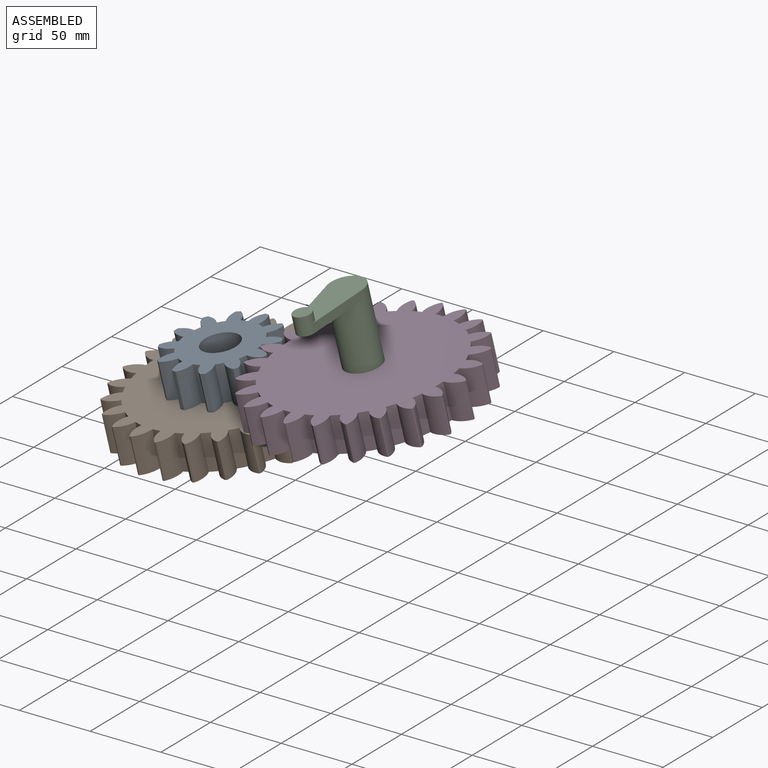
[diagram: assembled view]
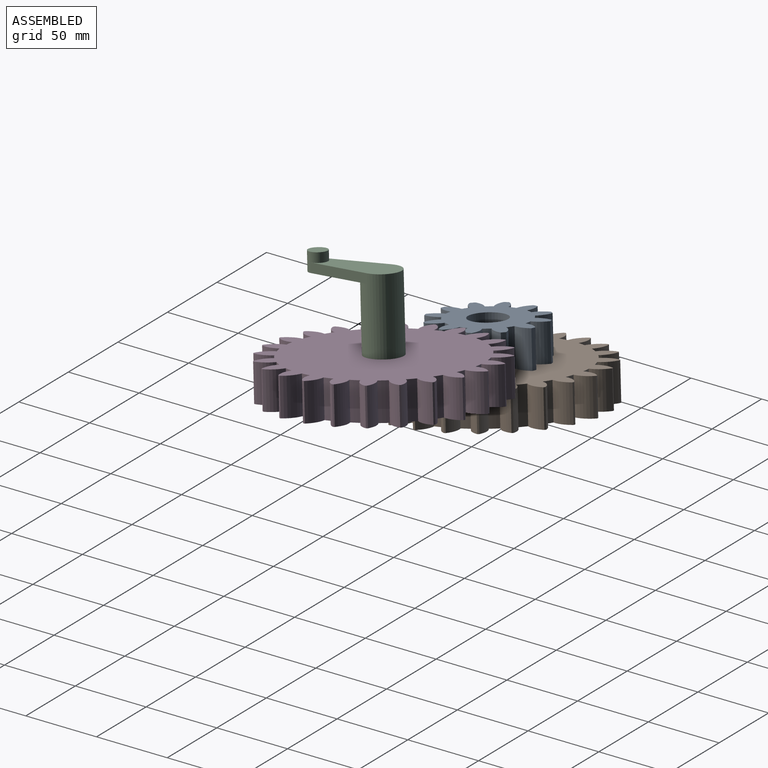
[diagram: assembled view, second angle]
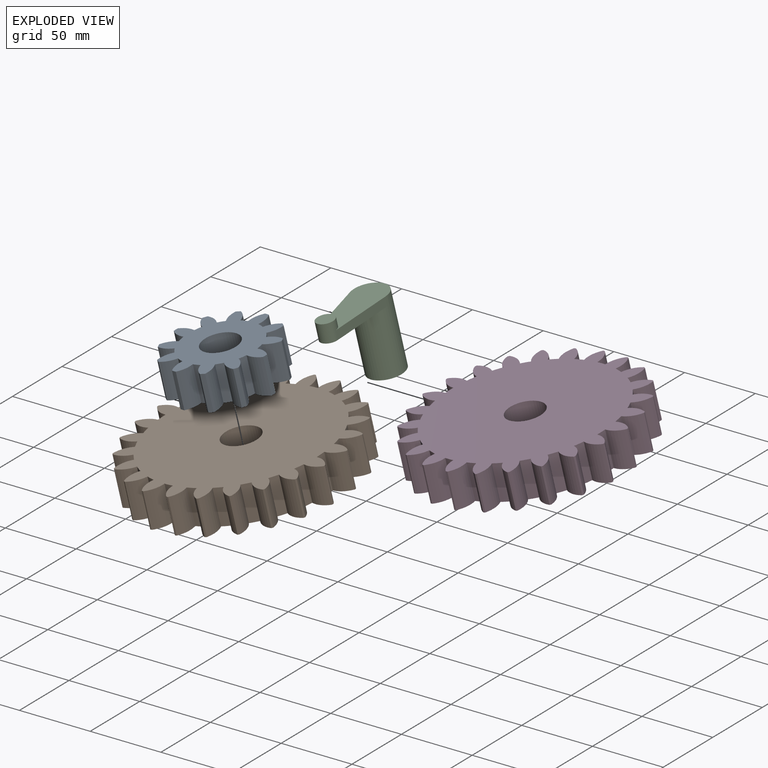
[diagram: exploded view]
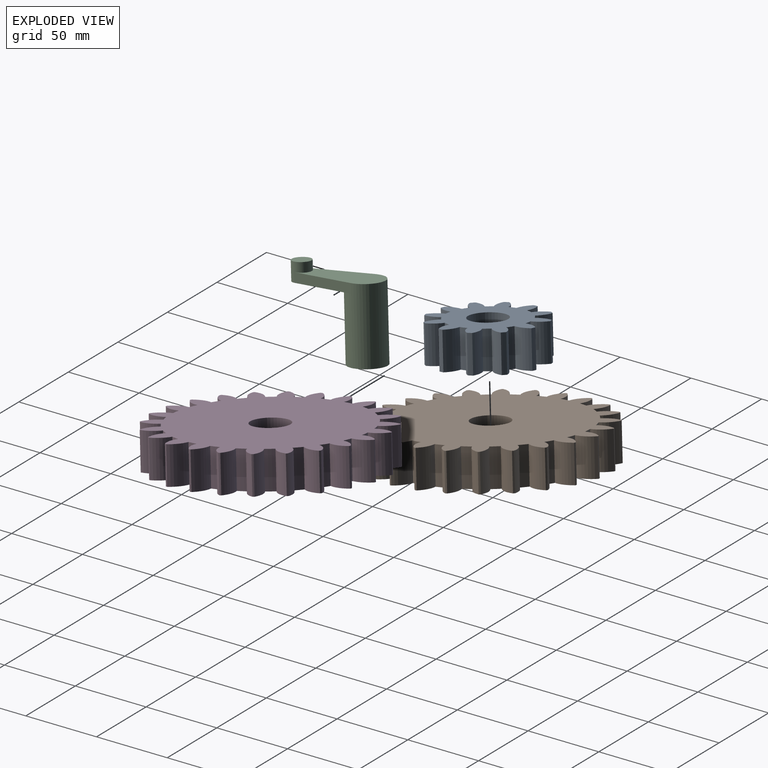
[diagram: exploded view, second angle]
ASSEMBLY  parts=4 mates=2
PART A: 51 faces, bbox 75.9x25.4x75.9 mm
  f0: cylinder r=27.21mm len=25.4mm, axis (0,1,0), area 136.6mm2, adj f14,f15,f16,f34
  f1: cylinder r=27.21mm len=25.4mm, axis (0,1,0), area 136.6mm2, adj f15,f16,f31,f33
  f2: cylinder r=27.21mm len=25.4mm, axis (0,1,0), area 136.6mm2, adj f15,f16,f28,f30
  f3: cylinder r=27.21mm len=25.4mm, axis (0,1,0), area 136.6mm2, adj f15,f16,f25,f27
  f4: cylinder r=27.21mm len=25.4mm, axis (0,1,0), area 136.6mm2, adj f15,f16,f22,f24
  f5: cylinder r=27.21mm len=25.4mm, axis (0,1,0), area 136.6mm2, adj f15,f16,f19,f21
  f6: cylinder r=27.21mm len=25.4mm, axis (0,1,0), area 136.6mm2, adj f15,f16,f18,f47
  f7: cylinder r=27.21mm len=25.4mm, axis (0,1,0), area 136.6mm2, adj f15,f16,f46,f49
  f8: cylinder r=27.21mm len=25.4mm, axis (0,1,0), area 136.6mm2, adj f15,f16,f43,f45
  f9: cylinder r=27.21mm len=25.4mm, axis (0,1,0), area 136.6mm2, adj f15,f16,f40,f42
  f10: cylinder r=27.21mm len=25.4mm, axis (0,1,0), area 136.6mm2, adj f15,f16,f36,f39
  f11: cylinder r=27.21mm len=25.4mm, axis (0,1,0), area 136.6mm2, adj f12,f15,f16,f37
  f12: cylinder r=14.61mm len=25.4mm, axis (0,1,0), area 301.7mm2, adj f11,f13,f15,f16
  f13: cylinder r=38.1mm len=25.4mm, axis (0,1,0), area 82.5mm2, adj f12,f14,f15,f16
  f14: cylinder r=14.61mm len=25.4mm, axis (0,1,0), area 301.7mm2, adj f0,f13,f15,f16
  f15: plane 75.9x75.9mm, normal (0,-1,0), area 2830mm2, adj f0,f1,f2,f3,f4,f5,f6,f7
  f16: plane 75.9x75.9mm, normal (0,1,0), area 2830mm2, adj f0,f1,f2,f3,f4,f5,f6,f7
  f17: cylinder r=38.1mm len=25.4mm, axis (0,1,0), area 82.5mm2, adj f15,f16,f18,f19
  f18: cylinder r=14.61mm len=25.4mm, axis (0,1,0), area 301.7mm2, adj f6,f15,f16,f17
  f19: cylinder r=14.61mm len=25.4mm, axis (0,1,0), area 301.7mm2, adj f5,f15,f16,f17
  f20: cylinder r=38.1mm len=25.4mm, axis (0,1,0), area 82.5mm2, adj f15,f16,f21,f22
  f21: cylinder r=14.61mm len=25.4mm, axis (0,1,0), area 301.7mm2, adj f5,f15,f16,f20
  f22: cylinder r=14.61mm len=25.4mm, axis (0,1,0), area 301.7mm2, adj f4,f15,f16,f20
  f23: cylinder r=38.1mm len=25.4mm, axis (0,1,0), area 82.5mm2, adj f15,f16,f24,f25
  f24: cylinder r=14.61mm len=25.4mm, axis (0,1,0), area 301.7mm2, adj f4,f15,f16,f23
  f25: cylinder r=14.61mm len=25.4mm, axis (0,1,0), area 301.7mm2, adj f3,f15,f16,f23
  f26: cylinder r=38.1mm len=25.4mm, axis (0,1,0), area 82.5mm2, adj f15,f16,f27,f28
  f27: cylinder r=14.61mm len=25.4mm, axis (0,1,0), area 301.7mm2, adj f3,f15,f16,f26
  f28: cylinder r=14.61mm len=25.4mm, axis (0,1,0), area 301.7mm2, adj f2,f15,f16,f26
  f29: cylinder r=38.1mm len=25.4mm, axis (0,1,0), area 82.5mm2, adj f15,f16,f30,f31
  f30: cylinder r=14.61mm len=25.4mm, axis (0,1,0), area 301.7mm2, adj f2,f15,f16,f29
  f31: cylinder r=14.61mm len=25.4mm, axis (0,1,0), area 301.7mm2, adj f1,f15,f16,f29
  f32: cylinder r=38.1mm len=25.4mm, axis (0,1,0), area 82.5mm2, adj f15,f16,f33,f34
  f33: cylinder r=14.61mm len=25.4mm, axis (0,1,0), area 301.7mm2, adj f1,f15,f16,f32
  f34: cylinder r=14.61mm len=25.4mm, axis (0,1,0), area 301.7mm2, adj f0,f15,f16,f32
  f35: cylinder r=38.1mm len=25.4mm, axis (0,1,0), area 82.5mm2, adj f15,f16,f36,f37
  f36: cylinder r=14.61mm len=25.4mm, axis (0,1,0), area 301.7mm2, adj f10,f15,f16,f35
  f37: cylinder r=14.61mm len=25.4mm, axis (0,1,0), area 301.7mm2, adj f11,f15,f16,f35
  f38: cylinder r=38.1mm len=25.4mm, axis (0,1,0), area 82.5mm2, adj f15,f16,f39,f40
  f39: cylinder r=14.61mm len=25.4mm, axis (0,1,0), area 301.7mm2, adj f10,f15,f16,f38
  f40: cylinder r=14.61mm len=25.4mm, axis (0,1,0), area 301.7mm2, adj f9,f15,f16,f38
  f41: cylinder r=38.1mm len=25.4mm, axis (0,1,0), area 82.5mm2, adj f15,f16,f42,f43
  f42: cylinder r=14.61mm len=25.4mm, axis (0,1,0), area 301.7mm2, adj f9,f15,f16,f41
  f43: cylinder r=14.61mm len=25.4mm, axis (0,1,0), area 301.7mm2, adj f8,f15,f16,f41
  f44: cylinder r=38.1mm len=25.4mm, axis (0,1,0), area 82.5mm2, adj f15,f16,f45,f46
  f45: cylinder r=14.61mm len=25.4mm, axis (0,1,0), area 301.7mm2, adj f8,f15,f16,f44
  f46: cylinder r=14.61mm len=25.4mm, axis (0,1,0), area 301.7mm2, adj f7,f15,f16,f44
  f47: cylinder r=14.61mm len=25.4mm, axis (0,1,0), area 301.7mm2, adj f6,f15,f16,f48
  f48: cylinder r=38.1mm len=25.4mm, axis (0,1,0), area 82.5mm2, adj f15,f16,f47,f49
  f49: cylinder r=14.61mm len=25.4mm, axis (0,1,0), area 301.7mm2, adj f7,f15,f16,f48
  f50: cylinder r=12.7mm len=25.4mm, axis (0,-1,0), area 2026.8mm2, adj f15,f16
PART B: 99 faces, bbox 152.1x25.4x152.1 mm
  f0: cylinder r=63.5mm len=25.4mm, axis (0,1,0), area 169.6mm2, adj f26,f27,f28,f64
  f1: cylinder r=63.5mm len=25.4mm, axis (0,1,0), area 169.6mm2, adj f27,f28,f61,f63
  f2: cylinder r=63.5mm len=25.4mm, axis (0,1,0), area 169.6mm2, adj f27,f28,f58,f60
  f3: cylinder r=63.5mm len=25.4mm, axis (0,1,0), area 169.6mm2, adj f27,f28,f55,f57
  f4: cylinder r=63.5mm len=25.4mm, axis (0,1,0), area 169.6mm2, adj f27,f28,f52,f54
  f5: cylinder r=63.5mm len=25.4mm, axis (0,1,0), area 169.6mm2, adj f27,f28,f49,f51
  f6: cylinder r=63.5mm len=25.4mm, axis (0,1,0), area 169.6mm2, adj f27,f28,f46,f48
  f7: cylinder r=63.5mm len=25.4mm, axis (0,1,0), area 169.6mm2, adj f27,f28,f43,f45
  f8: cylinder r=63.5mm len=25.4mm, axis (0,1,0), area 169.6mm2, adj f27,f28,f40,f42
  f9: cylinder r=63.5mm len=25.4mm, axis (0,1,0), area 169.6mm2, adj f27,f28,f37,f39
  f10: cylinder r=63.5mm len=25.4mm, axis (0,1,0), area 169.6mm2, adj f27,f28,f34,f36
  f11: cylinder r=63.5mm len=25.4mm, axis (0,1,0), area 169.6mm2, adj f27,f28,f31,f33
  f12: cylinder r=63.5mm len=25.4mm, axis (0,1,0), area 169.6mm2, adj f27,f28,f30,f95
  f13: cylinder r=63.5mm len=25.4mm, axis (0,1,0), area 169.6mm2, adj f27,f28,f94,f97
  f14: cylinder r=63.5mm len=25.4mm, axis (0,1,0), area 169.6mm2, adj f27,f28,f91,f93
  f15: cylinder r=63.5mm len=25.4mm, axis (0,1,0), area 169.6mm2, adj f27,f28,f88,f90
  f16: cylinder r=63.5mm len=25.4mm, axis (0,1,0), area 169.6mm2, adj f27,f28,f85,f87
  f17: cylinder r=63.5mm len=25.4mm, axis (0,1,0), area 169.6mm2, adj f27,f28,f82,f84
  f18: cylinder r=63.5mm len=25.4mm, axis (0,1,0), area 169.6mm2, adj f27,f28,f79,f81
  f19: cylinder r=63.5mm len=25.4mm, axis (0,1,0), area 169.6mm2, adj f27,f28,f76,f78
  f20: cylinder r=63.5mm len=25.4mm, axis (0,1,0), area 169.6mm2, adj f27,f28,f73,f75
  f21: cylinder r=63.5mm len=25.4mm, axis (0,1,0), area 169.6mm2, adj f27,f28,f70,f72
  f22: cylinder r=63.5mm len=25.4mm, axis (0,1,0), area 169.6mm2, adj f27,f28,f66,f69
  f23: cylinder r=63.5mm len=25.4mm, axis (0,1,0), area 169.6mm2, adj f24,f27,f28,f67
  f24: cylinder r=14.61mm len=25.4mm, axis (0,1,0), area 359.6mm2, adj f23,f25,f27,f28
  f25: cylinder r=76.2mm len=25.4mm, axis (0,1,0), area 31mm2, adj f24,f26,f27,f28
  f26: cylinder r=14.61mm len=25.4mm, axis (0,1,0), area 359.6mm2, adj f0,f25,f27,f28
  f27: plane 152.15x152.15mm, normal (0,-1,0), area 14597.7mm2, adj f0,f1,f2,f3,f4,f5,f6,f7
  f28: plane 152.15x152.15mm, normal (0,1,0), area 14597.7mm2, adj f0,f1,f2,f3,f4,f5,f6,f7
  f29: cylinder r=76.2mm len=25.4mm, axis (0,1,0), area 31mm2, adj f27,f28,f30,f31
  f30: cylinder r=14.61mm len=25.4mm, axis (0,1,0), area 359.6mm2, adj f12,f27,f28,f29
  f31: cylinder r=14.61mm len=25.4mm, axis (0,1,0), area 359.6mm2, adj f11,f27,f28,f29
  f32: cylinder r=76.2mm len=25.4mm, axis (0,1,0), area 31mm2, adj f27,f28,f33,f34
  f33: cylinder r=14.61mm len=25.4mm, axis (0,1,0), area 359.6mm2, adj f11,f27,f28,f32
  f34: cylinder r=14.61mm len=25.4mm, axis (0,1,0), area 359.6mm2, adj f10,f27,f28,f32
  f35: cylinder r=76.2mm len=25.4mm, axis (0,1,0), area 31mm2, adj f27,f28,f36,f37
  f36: cylinder r=14.61mm len=25.4mm, axis (0,1,0), area 359.6mm2, adj f10,f27,f28,f35
  f37: cylinder r=14.61mm len=25.4mm, axis (0,1,0), area 359.6mm2, adj f9,f27,f28,f35
  f38: cylinder r=76.2mm len=25.4mm, axis (0,1,0), area 31mm2, adj f27,f28,f39,f40
  f39: cylinder r=14.61mm len=25.4mm, axis (0,1,0), area 359.6mm2, adj f9,f27,f28,f38
  f40: cylinder r=14.61mm len=25.4mm, axis (0,1,0), area 359.6mm2, adj f8,f27,f28,f38
  f41: cylinder r=76.2mm len=25.4mm, axis (0,1,0), area 31mm2, adj f27,f28,f42,f43
  f42: cylinder r=14.61mm len=25.4mm, axis (0,1,0), area 359.6mm2, adj f8,f27,f28,f41
  f43: cylinder r=14.61mm len=25.4mm, axis (0,1,0), area 359.6mm2, adj f7,f27,f28,f41
  f44: cylinder r=76.2mm len=25.4mm, axis (0,1,0), area 31mm2, adj f27,f28,f45,f46
  f45: cylinder r=14.61mm len=25.4mm, axis (0,1,0), area 359.6mm2, adj f7,f27,f28,f44
  f46: cylinder r=14.61mm len=25.4mm, axis (0,1,0), area 359.6mm2, adj f6,f27,f28,f44
  f47: cylinder r=76.2mm len=25.4mm, axis (0,1,0), area 31mm2, adj f27,f28,f48,f49
  f48: cylinder r=14.61mm len=25.4mm, axis (0,1,0), area 359.6mm2, adj f6,f27,f28,f47
  f49: cylinder r=14.61mm len=25.4mm, axis (0,1,0), area 359.6mm2, adj f5,f27,f28,f47
  f50: cylinder r=76.2mm len=25.4mm, axis (0,1,0), area 31mm2, adj f27,f28,f51,f52
  f51: cylinder r=14.61mm len=25.4mm, axis (0,1,0), area 359.6mm2, adj f5,f27,f28,f50
  f52: cylinder r=14.61mm len=25.4mm, axis (0,1,0), area 359.6mm2, adj f4,f27,f28,f50
  f53: cylinder r=76.2mm len=25.4mm, axis (0,1,0), area 31mm2, adj f27,f28,f54,f55
  f54: cylinder r=14.61mm len=25.4mm, axis (0,1,0), area 359.6mm2, adj f4,f27,f28,f53
  f55: cylinder r=14.61mm len=25.4mm, axis (0,1,0), area 359.6mm2, adj f3,f27,f28,f53
  f56: cylinder r=76.2mm len=25.4mm, axis (0,1,0), area 31mm2, adj f27,f28,f57,f58
  f57: cylinder r=14.61mm len=25.4mm, axis (0,1,0), area 359.6mm2, adj f3,f27,f28,f56
  f58: cylinder r=14.61mm len=25.4mm, axis (0,1,0), area 359.6mm2, adj f2,f27,f28,f56
  f59: cylinder r=76.2mm len=25.4mm, axis (0,1,0), area 31mm2, adj f27,f28,f60,f61
  f60: cylinder r=14.61mm len=25.4mm, axis (0,1,0), area 359.6mm2, adj f2,f27,f28,f59
  f61: cylinder r=14.61mm len=25.4mm, axis (0,1,0), area 359.6mm2, adj f1,f27,f28,f59
  f62: cylinder r=76.2mm len=25.4mm, axis (0,1,0), area 31mm2, adj f27,f28,f63,f64
  f63: cylinder r=14.61mm len=25.4mm, axis (0,1,0), area 359.6mm2, adj f1,f27,f28,f62
  f64: cylinder r=14.61mm len=25.4mm, axis (0,1,0), area 359.6mm2, adj f0,f27,f28,f62
  f65: cylinder r=76.2mm len=25.4mm, axis (0,1,0), area 31mm2, adj f27,f28,f66,f67
  f66: cylinder r=14.61mm len=25.4mm, axis (0,1,0), area 359.6mm2, adj f22,f27,f28,f65
  f67: cylinder r=14.61mm len=25.4mm, axis (0,1,0), area 359.6mm2, adj f23,f27,f28,f65
  f68: cylinder r=76.2mm len=25.4mm, axis (0,1,0), area 31mm2, adj f27,f28,f69,f70
  f69: cylinder r=14.61mm len=25.4mm, axis (0,1,0), area 359.6mm2, adj f22,f27,f28,f68
  f70: cylinder r=14.61mm len=25.4mm, axis (0,1,0), area 359.6mm2, adj f21,f27,f28,f68
  f71: cylinder r=76.2mm len=25.4mm, axis (0,1,0), area 31mm2, adj f27,f28,f72,f73
  f72: cylinder r=14.61mm len=25.4mm, axis (0,1,0), area 359.6mm2, adj f21,f27,f28,f71
  f73: cylinder r=14.61mm len=25.4mm, axis (0,1,0), area 359.6mm2, adj f20,f27,f28,f71
  f74: cylinder r=76.2mm len=25.4mm, axis (0,1,0), area 31mm2, adj f27,f28,f75,f76
  f75: cylinder r=14.61mm len=25.4mm, axis (0,1,0), area 359.6mm2, adj f20,f27,f28,f74
  f76: cylinder r=14.61mm len=25.4mm, axis (0,1,0), area 359.6mm2, adj f19,f27,f28,f74
  f77: cylinder r=76.2mm len=25.4mm, axis (0,1,0), area 31mm2, adj f27,f28,f78,f79
  f78: cylinder r=14.61mm len=25.4mm, axis (0,1,0), area 359.6mm2, adj f19,f27,f28,f77
  f79: cylinder r=14.61mm len=25.4mm, axis (0,1,0), area 359.6mm2, adj f18,f27,f28,f77
  f80: cylinder r=76.2mm len=25.4mm, axis (0,1,0), area 31mm2, adj f27,f28,f81,f82
  f81: cylinder r=14.61mm len=25.4mm, axis (0,1,0), area 359.6mm2, adj f18,f27,f28,f80
  f82: cylinder r=14.61mm len=25.4mm, axis (0,1,0), area 359.6mm2, adj f17,f27,f28,f80
  f83: cylinder r=76.2mm len=25.4mm, axis (0,1,0), area 31mm2, adj f27,f28,f84,f85
  f84: cylinder r=14.61mm len=25.4mm, axis (0,1,0), area 359.6mm2, adj f17,f27,f28,f83
  f85: cylinder r=14.61mm len=25.4mm, axis (0,1,0), area 359.6mm2, adj f16,f27,f28,f83
  f86: cylinder r=76.2mm len=25.4mm, axis (0,1,0), area 31mm2, adj f27,f28,f87,f88
  f87: cylinder r=14.61mm len=25.4mm, axis (0,1,0), area 359.6mm2, adj f16,f27,f28,f86
  f88: cylinder r=14.61mm len=25.4mm, axis (0,1,0), area 359.6mm2, adj f15,f27,f28,f86
  f89: cylinder r=76.2mm len=25.4mm, axis (0,1,0), area 31mm2, adj f27,f28,f90,f91
  f90: cylinder r=14.61mm len=25.4mm, axis (0,1,0), area 359.6mm2, adj f15,f27,f28,f89
  f91: cylinder r=14.61mm len=25.4mm, axis (0,1,0), area 359.6mm2, adj f14,f27,f28,f89
  f92: cylinder r=76.2mm len=25.4mm, axis (0,1,0), area 31mm2, adj f27,f28,f93,f94
  f93: cylinder r=14.61mm len=25.4mm, axis (0,1,0), area 359.6mm2, adj f14,f27,f28,f92
  f94: cylinder r=14.61mm len=25.4mm, axis (0,1,0), area 359.6mm2, adj f13,f27,f28,f92
  f95: cylinder r=14.61mm len=25.4mm, axis (0,1,0), area 359.6mm2, adj f12,f27,f28,f96
  f96: cylinder r=76.2mm len=25.4mm, axis (0,1,0), area 31mm2, adj f27,f28,f95,f97
  f97: cylinder r=14.61mm len=25.4mm, axis (0,1,0), area 359.6mm2, adj f13,f27,f28,f96
  f98: cylinder r=12.7mm len=25.4mm, axis (0,-1,0), area 2026.8mm2, adj f27,f28
PART C: 8 faces, bbox 63.5x57.2x25.4 mm
  f0: cylinder r=12.7mm len=50.8mm, axis (0,1,0), area 3823.4mm2, adj f1,f2,f4,f5,f6
  f1: plane 58.06x25.4mm, normal (0,-1,0), area 1045.4mm2, adj f0,f3,f4,f5
  f2: plane 25.4x25.4mm, normal (0,1,0), area 506.7mm2, adj f0
  f3: cylinder r=6.35mm len=12.7mm, axis (0,1,0), area 368.5mm2, adj f1,f4,f5,f6,f7
  f4: plane 43.54x6.35mm, normal (0.14,0,0.99), area 279.4mm2, adj f0,f1,f3,f6
  f5: plane 43.54x6.35mm, normal (0.14,0,-0.99), area 279.4mm2, adj f0,f1,f3,f6
  f6: plane 48.99x25.14mm, normal (0,1,0), area 665.4mm2, adj f0,f3,f4,f5
  f7: plane 12.7x12.7mm, normal (0,-1,0), area 126.7mm2, adj f3
PART D: same geometry as B
PLACE A rot(axis=(0.99,-0.1,0.04),98.2deg) t=(-8.66,190.99,-22.92)mm
PLACE B rot(axis=(0.07,0.75,-0.66),176.9deg) t=(-4.94,194.32,-47.82)mm
PLACE C rot(axis=(-0.53,0.6,-0.61),110.2deg) t=(91.86,187.31,4.56)mm
PLACE D rot(axis=(0.63,-0.55,-0.54),128.8deg) t=(93.72,188.98,-7.89)mm
MATE fastened B.f0 <-> A.f0  axis (-0.15,-0.13,0.98) through (-6.8,192.66,-35.37)mm
MATE fastened C.f0 <-> D.f0  axis (0.15,0.13,-0.98) through (91.86,187.31,4.56)mm
